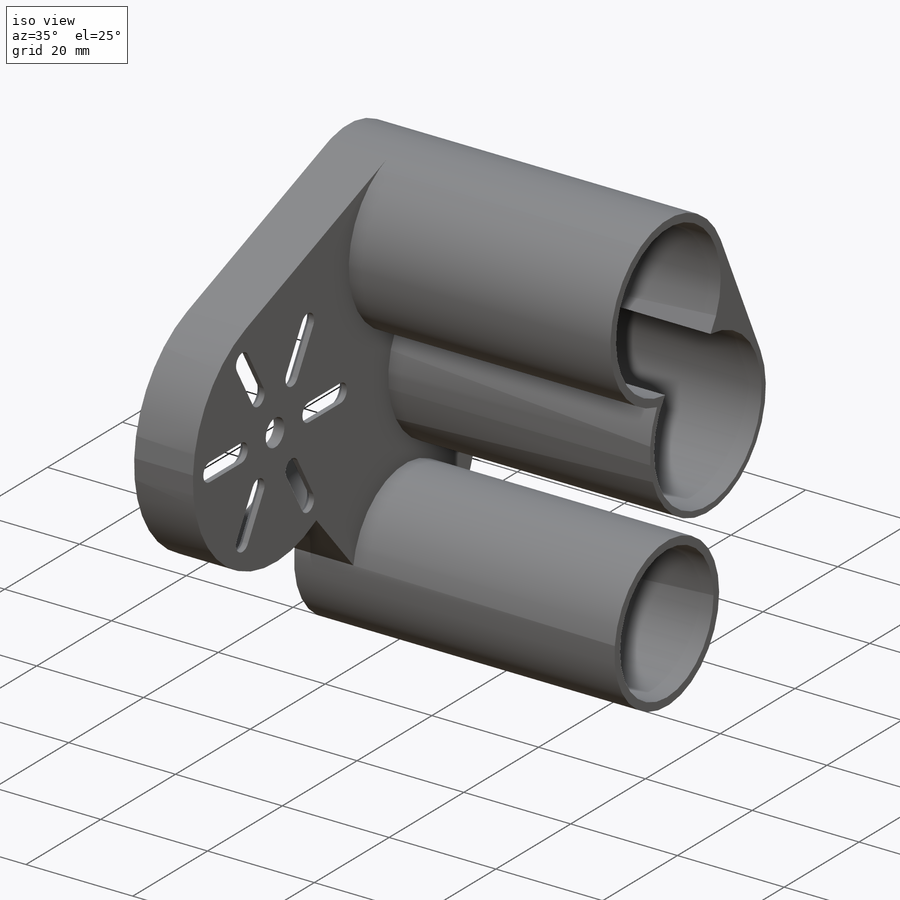
[diagram: iso view]
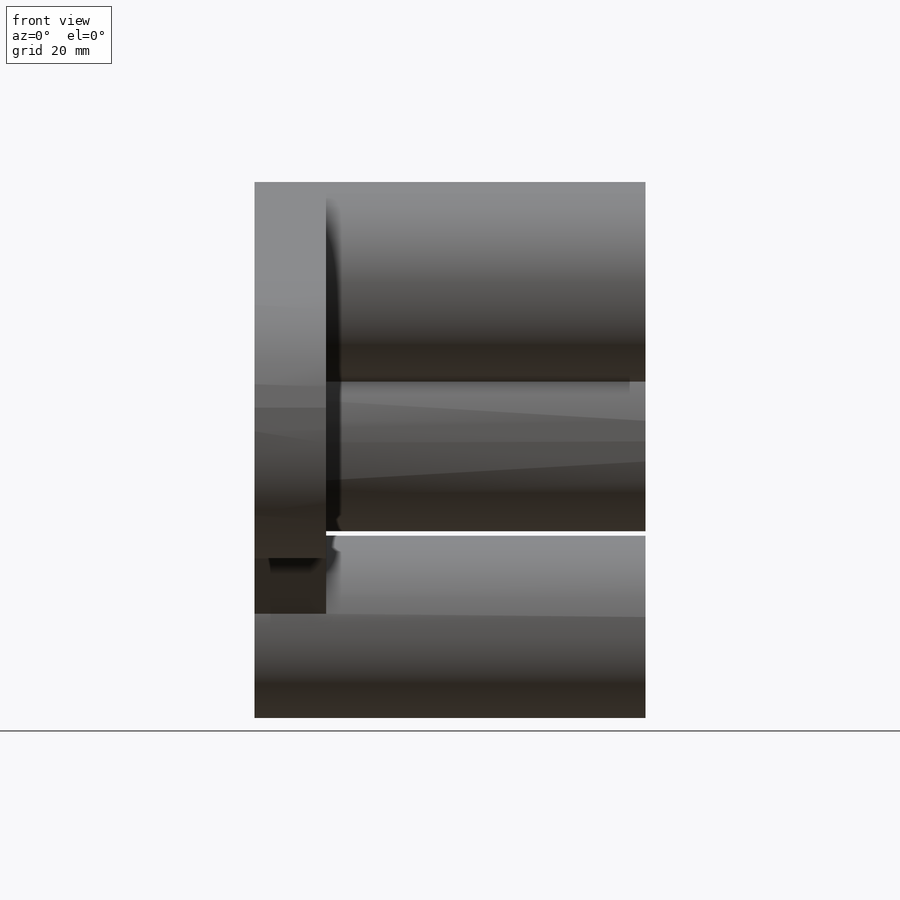
[diagram: front view]
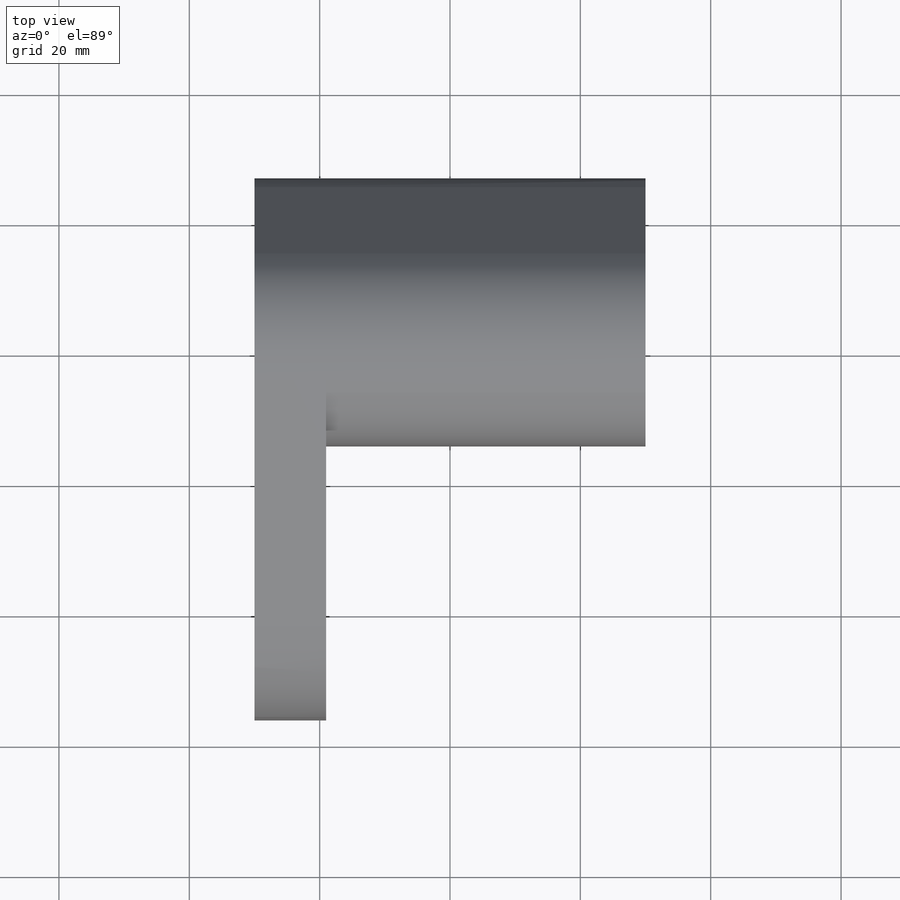
[diagram: top view]
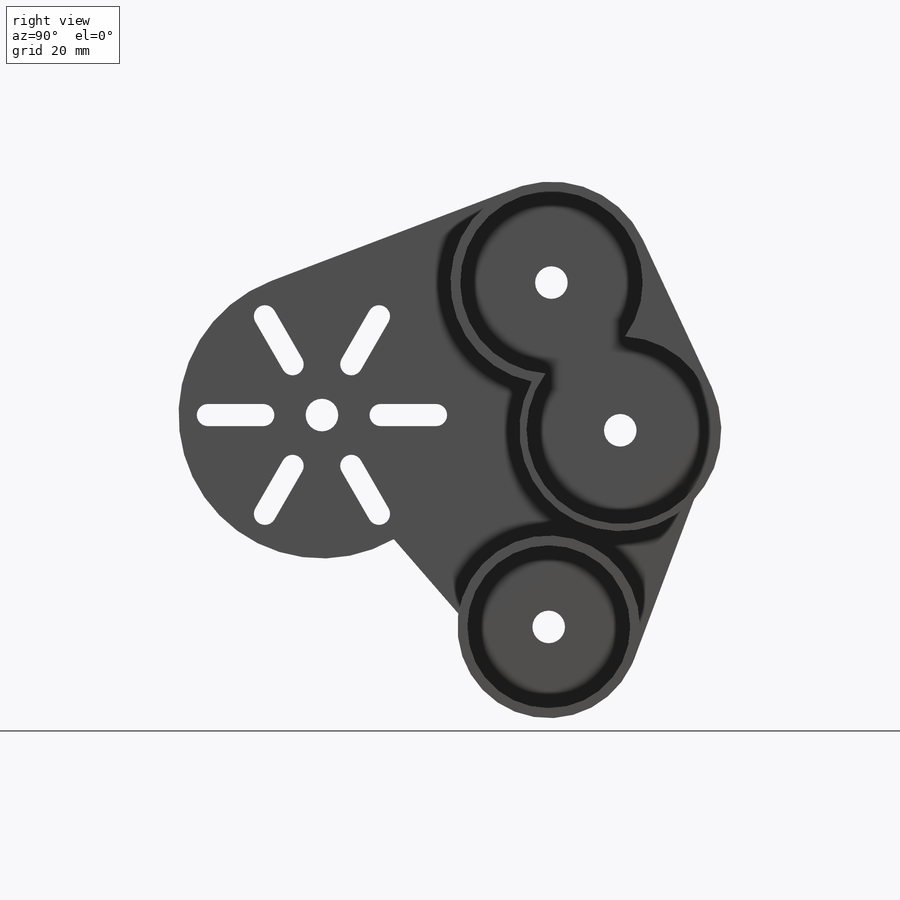
[diagram: right view]
SOLIDWORKS PART (.sldprt)
format: sldprt  version: not decoded by parser v0  size: 462,336 bytes
history: native  units: mm
features: sketch x3, cut_extrude x2, chamfer x2, material x1, extrude x1 (+11 scaffold rows collapsed)
feature tree (20):
  scaffold x11  (default folders/planes/origin — collapsed)
  material  "ABS"
  sketch  "Sketch1"  dims[c1.D1=27.0mm c1.D2=5.0mm c1.D3=5.0mm c1.D4=5.0mm c1.D5=20.0mm c1.D7=44.0mm c1.D9=17.0mm c1.D11=15.0mm c2.D5=32.0mm c2.D12=18.0mm c2.D9=5.0mm c2.D16=27.0mm c2.D17=27.0mm c3.D16=27.0mm c3.D3=5.0mm c3.D8=31.0mm c3.D9=21.0mm c3.D10=22.0mm c3.D11=31.0mm c3.D12=~16.246811mm c3.D13=28.0mm c3.D14=44.0mm c3.D17=18.0mm c4.D14=35.0mm c4.D20=46.0mm c4.D6=28.5mm c4.D8=50.0mm c4.D9=25.0mm c5.D6=37.5mm c5.D9=7.0mm c5.D10=10.0mm c5.D12=~43.686534mm c5.D13=22.0mm c5.D14=~12.840982mm c6.D14=60.0deg c6.D15=~15.61515mm c7.D15=47.0deg c8.D15=50.0mm c9.D15=117.0deg c9.D16=1.5mm c9.D17=1.5mm c9.D5=1.5mm c9.D19=3.4mm c9.D4=~32.104321mm c10.D5=25.0mm c10.D6=~15.672795mm c11.D6=135.0deg c11.D15=~10.146119mm c12.D15=85.0deg c12.D16=~32.104321mm c13.D16=70.0deg c13.D18=6.0]
  extrude  "Boss-Extrude1"  Depth=50mm
  sketch  "Sketch2"  dims[c1.D1=1.4mm c1.D2=1.4mm c1.D3=1.4mm c1.D4=1.4mm c1.D5=~22.064498mm c2.D5=~179.99415deg c3.D5=~22.064498mm c3.D1=1.4mm c3.D2=1.4mm c4.D1=1.4mm]
  cut_extrude  "Cut-Extrude1"  Depth=9mm
  sketch  "Sketch3"  dims[D1=13.0mm]
  cut_extrude  "Cut-Extrude2"  Depth=49mm
  chamfer  "Chamfer1"  Distance=1mm Angle=45deg
  chamfer  "Chamfer3"  Distance=0.25mm Angle=45deg
decode coverage: 8 of 8 modeling features carry decoded parameters
note: ~ marks probable driven/reference dimensions
note: suppression state not decoded; provenance and decode notes live in map.json
